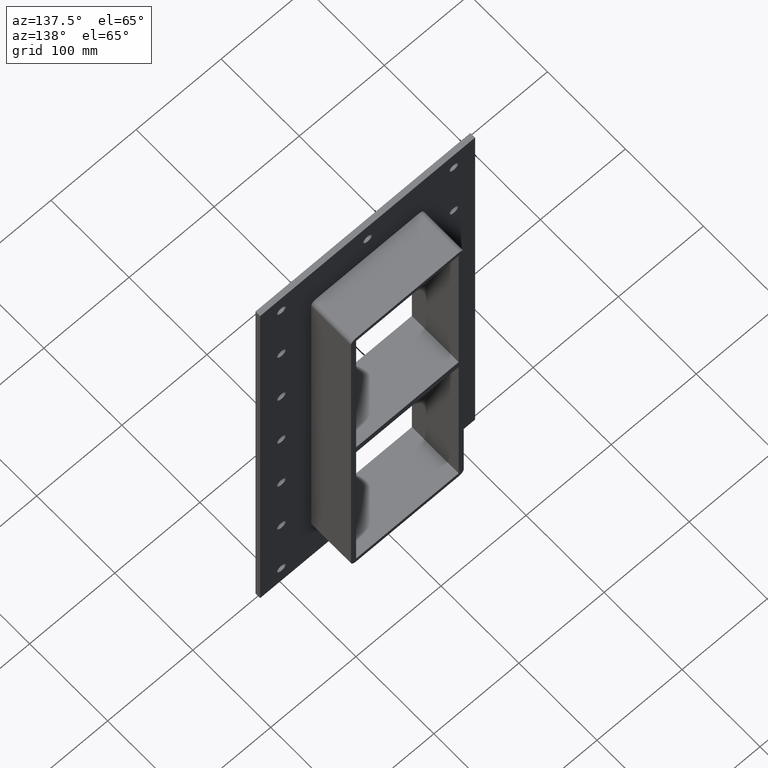
[diagram: clean part render]
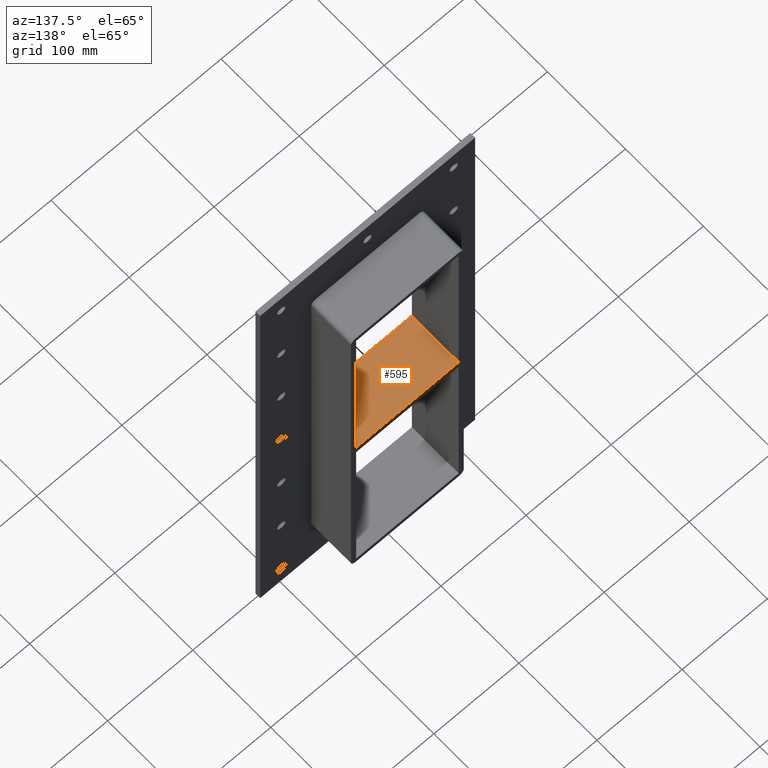
[diagram: same view with one face highlighted and labeled with its STEP entity id]
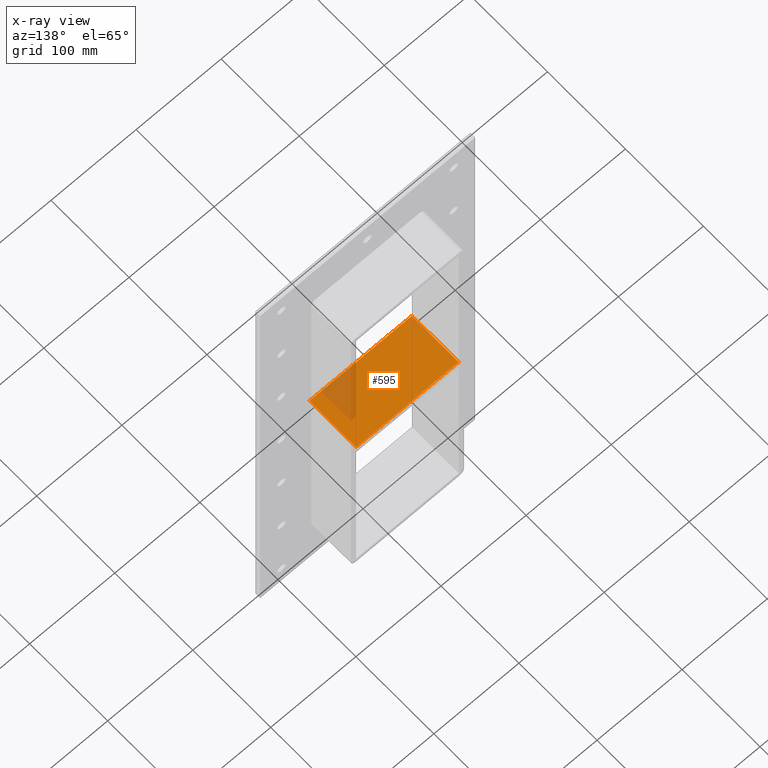
[diagram: x-ray of the same camera — body ghosted, the highlighted face saturated]
A machine part, auxiliary view. The second image highlights one B-rep face of the part: STEP entity #595.
The next image is the same camera in x-ray: the body ghosted, the highlighted face saturated — about 12% of this face is hidden behind the body in this view.
In plain terms, the highlighted planar face has unit normal (0, 0, 1).
Its self-contained STEP definition (entity closure, byte-faithful):
#556=CARTESIAN_POINT('',(-60.249999999999687,-3.0,5.0));
#557=DIRECTION('',(0.0,0.0,1.0));
#558=DIRECTION('',(1.0,0.0,0.0));
#559=AXIS2_PLACEMENT_3D('',#556,#557,#558);
#560=PLANE('',#559);
#561=CARTESIAN_POINT('',(-60.249999999999687,-3.0,5.0));
#562=VERTEX_POINT('',#561);
#563=CARTESIAN_POINT('',(60.249999999999886,-3.0,5.0));
#564=VERTEX_POINT('',#563);
#565=CARTESIAN_POINT('',(-60.249999999999687,-3.0,5.0));
#566=DIRECTION('',(1.0,0.0,0.0));
#567=VECTOR('',#566,120.49999999999957);
#568=LINE('',#565,#567);
#569=EDGE_CURVE('',#562,#564,#568,.T.);
#570=ORIENTED_EDGE('',*,*,#569,.T.);
#571=CARTESIAN_POINT('',(60.249999999999901,57.0,5.0));
#572=VERTEX_POINT('',#571);
#573=CARTESIAN_POINT('',(60.25,57.000000000000007,5.0));
#574=DIRECTION('',(0.0,-1.0,0.0));
#575=VECTOR('',#574,60.000000000000007);
#576=LINE('',#573,#575);
#577=EDGE_CURVE('',#572,#564,#576,.T.);
#578=ORIENTED_EDGE('',*,*,#577,.F.);
#579=CARTESIAN_POINT('',(-60.249999999999687,57.0,5.0));
#580=VERTEX_POINT('',#579);
#581=CARTESIAN_POINT('',(-60.249999999999687,57.0,5.0));
#582=DIRECTION('',(1.0,0.0,0.0));
#583=VECTOR('',#582,120.49999999999957);
#584=LINE('',#581,#583);
#585=EDGE_CURVE('',#580,#572,#584,.T.);
#586=ORIENTED_EDGE('',*,*,#585,.F.);
#587=CARTESIAN_POINT('',(-60.249999999999993,-3.0,5.0));
#588=DIRECTION('',(0.0,1.0,0.0));
#589=VECTOR('',#588,60.000000000000007);
#590=LINE('',#587,#589);
#591=EDGE_CURVE('',#562,#580,#590,.T.);
#592=ORIENTED_EDGE('',*,*,#591,.F.);
#593=EDGE_LOOP('',(#570,#578,#586,#592));
#594=FACE_OUTER_BOUND('',#593,.T.);
#595=ADVANCED_FACE('',(#594),#560,.T.);